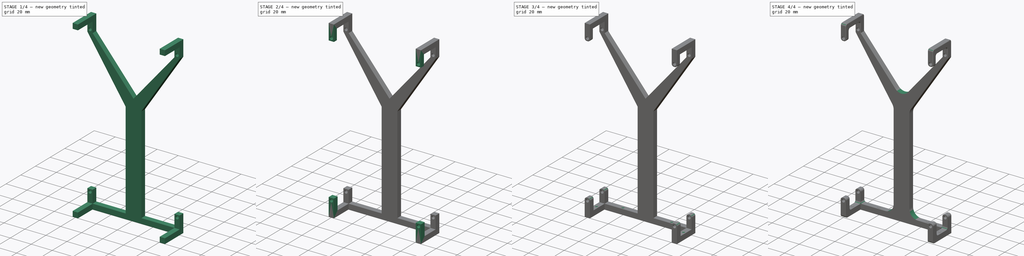
[diagram: build sequence overview — one tinted view per stage of 4, left to right]
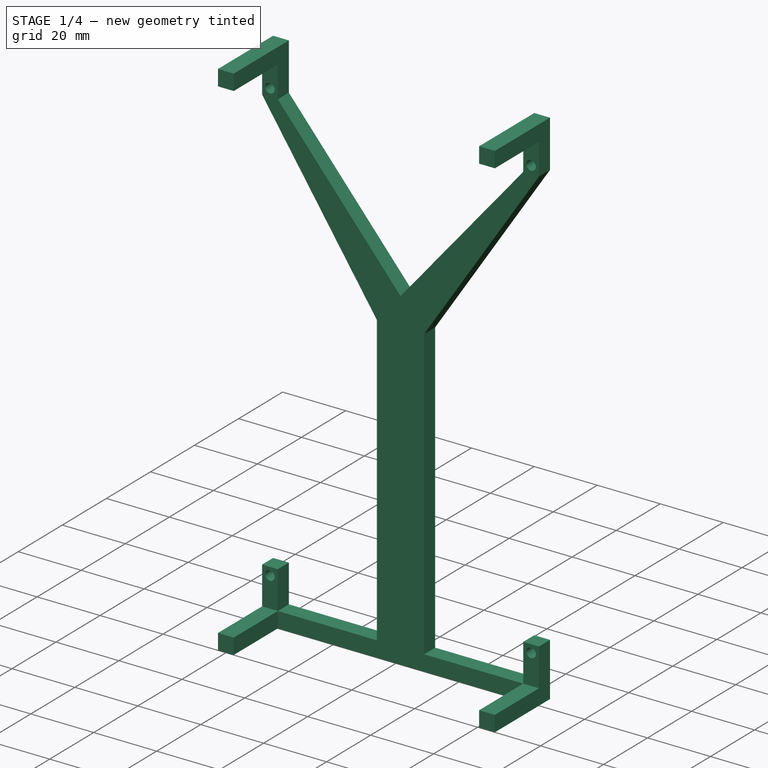
[diagram: stage 1 of 4 — iso view after this stage's code; geometry added in this stage tinted green]
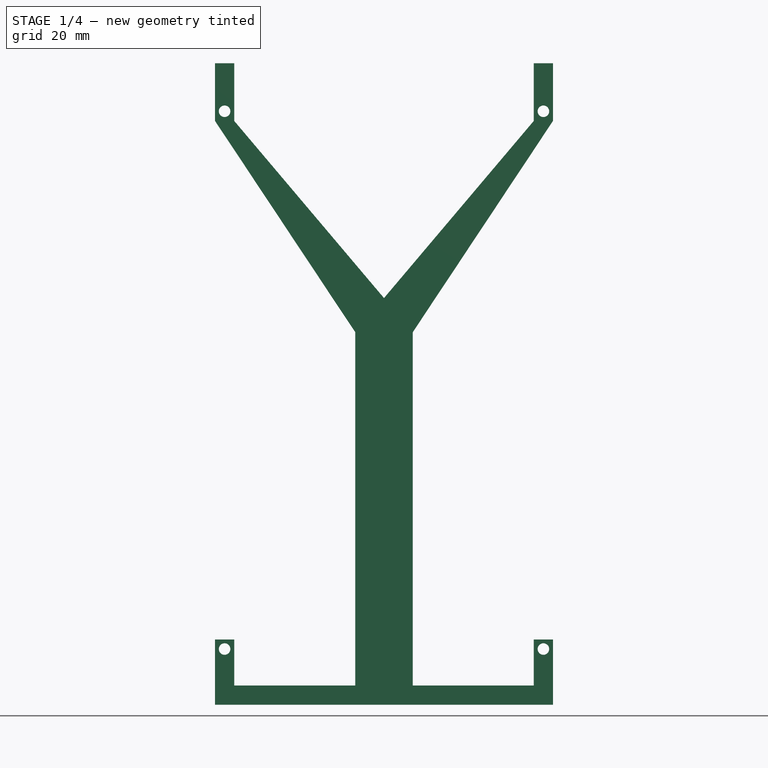
[diagram: stage 1 of 4 — front view after this stage's code; geometry added in this stage tinted green]
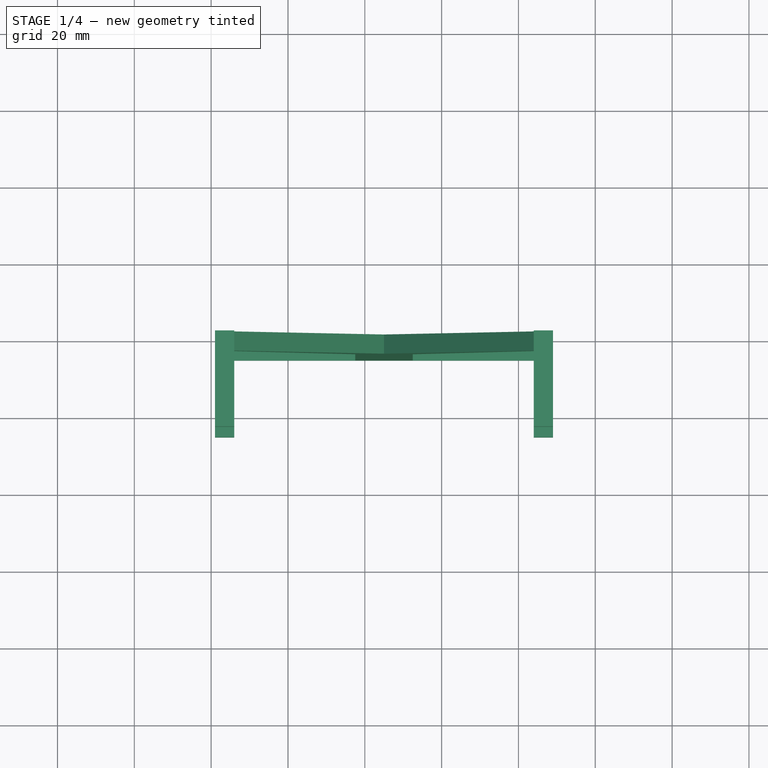
[diagram: stage 1 of 4 — top view after this stage's code; geometry added in this stage tinted green]
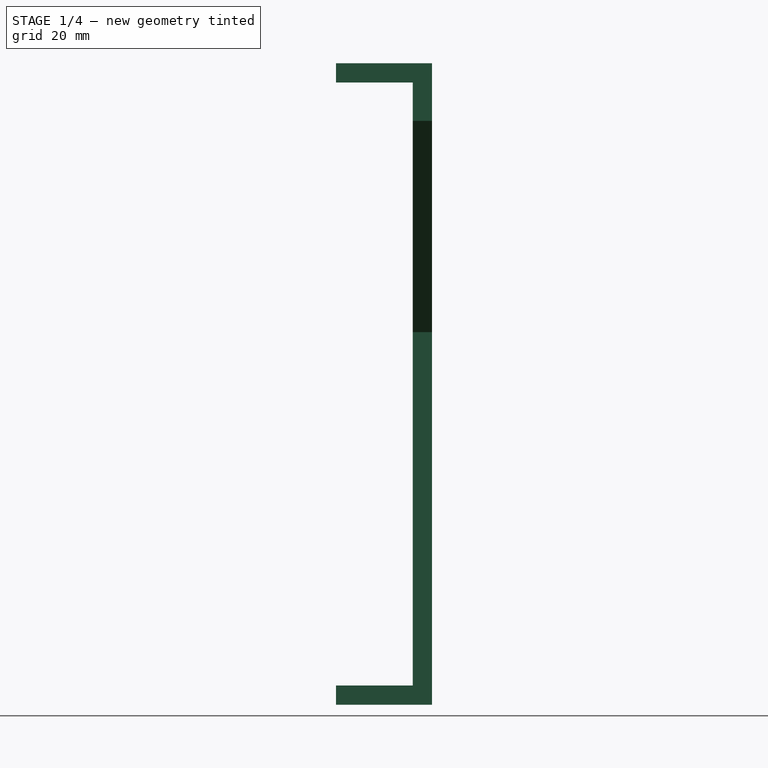
[diagram: stage 1 of 4 — right view after this stage's code; geometry added in this stage tinted green]
FCSTD DOCUMENT  (FreeCAD 1.0R39109 (Git))
Label: Stand
License: All rights reserved
LicenseURL: http://en.wikipedia.org/wiki/All_rights_reserved
objects: Sketcher::SketchObject×7, PartDesign::Pad×5, PartDesign::Fillet×4, PartDesign::Body×2, PartDesign::ShapeBinder×1, PartDesign::Pocket×1, PartDesign::Hole×1
note: 50 computed .brp shape members not serialized (recipe doc carries the construction recipe); baked Part::Feature solids carry a one-line shape summary decoded from their .brp

FEATURE [Sketcher::SketchObject] Sketch
  ArcFitTolerance = 1e-06
  AttachmentSupport = -> [XZ_Plane]
  FullyConstrained = true
  MakeInternals = false
  MapMode = 5
  Placement = pos=(0,0,0) rot=(1,0,0;1.5708rad)
  sketch-geometry (16):
    g0: LineSegment StartX=0 StartY=0 StartZ=0 EndX=90 EndY=0 EndZ=0
    g1: LineSegment StartX=90 StartY=0 StartZ=0 EndX=90 EndY=150 EndZ=0
    g2: LineSegment StartX=90 StartY=150 StartZ=0 EndX=0 EndY=150 EndZ=0
    g3: LineSegment StartX=0 StartY=150 StartZ=0 EndX=0 EndY=0 EndZ=0
    g4: LineSegment [constr] StartX=3.5 StartY=145 StartZ=0 EndX=3.5 EndY=5 EndZ=0
    g5: LineSegment [constr] StartX=3.5 StartY=5 StartZ=0 EndX=86.5 EndY=5 EndZ=0
    g6: LineSegment [constr] StartX=86.5 StartY=5 StartZ=0 EndX=86.5 EndY=145 EndZ=0
    g7: LineSegment [constr] StartX=86.5 StartY=145 StartZ=0 EndX=3.5 EndY=145 EndZ=0
    g8: LineSegment [constr] StartX=86.5 StartY=145 StartZ=0 EndX=86.5 EndY=150 EndZ=0
    g9: LineSegment [constr] StartX=86.5 StartY=5 StartZ=0 EndX=86.5 EndY=0 EndZ=0
    g10: LineSegment [constr] StartX=3.5 StartY=145 StartZ=0 EndX=0 EndY=145 EndZ=0
    g11: LineSegment [constr] StartX=86.5 StartY=145 StartZ=0 EndX=90 EndY=145 EndZ=0
    g12: Circle CenterX=3.5 CenterY=145 CenterZ=0 NormalX=0 NormalY=0 NormalZ=1 AngleXU=0 Radius=1.5
    g13: Circle CenterX=86.5 CenterY=145 CenterZ=0 NormalX=0 NormalY=0 NormalZ=1 AngleXU=0 Radius=1.5
    g14: Circle CenterX=86.5 CenterY=5 CenterZ=0 NormalX=0 NormalY=0 NormalZ=1 AngleXU=0 Radius=1.5
    g15: Circle CenterX=3.5 CenterY=5 CenterZ=0 NormalX=0 NormalY=0 NormalZ=1 AngleXU=0 Radius=1.5
  constraints (43):
    c: Coincident(g0,g1)
    c: Coincident(g1,g2)
    c: Coincident(g2,g3)
    c: Coincident(g3,g0)
    c: Horizontal(g0)
    c: Horizontal(g2)
    c: Vertical(g1)
    c: Vertical(g3)
    c: Coincident(g0,g-1)
    c: DistanceX(g2,g2) = 90
    c: DistanceY(g3,g3) = 150
    c: Coincident(g4,g5)
    c: Coincident(g5,g6)
    c: Coincident(g6,g7)
    c: Coincident(g7,g4)
    c: Vertical(g4)
    c: Vertical(g6)
    c: Horizontal(g5)
    c: Horizontal(g7)
    c: Distance(g2,g7) = 5
    c: Coincident(g8,g6)
    c: PointOnObject(g8,g2)
    c: Vertical(g8)
    c: Coincident(g9,g5)
    c: PointOnObject(g9,g0)
    c: Vertical(g9)
    c: Equal(g9,g8)
    c: Coincident(g10,g4)
    c: PointOnObject(g10,g3)
    c: Horizontal(g10)
    c: Coincident(g11,g6)
    c: PointOnObject(g11,g1)
    c: Horizontal(g11)
    c: Equal(g10,g11)
    c: Distance(g11,g11) = 3.5
    c: Coincident(g12,g4)
    c: Coincident(g13,g6)
    c: Coincident(g14,g5)
    c: Coincident(g15,g4)
    c: Diameter(g15) = 3
    c: Equal(g15,g14)
    c: Equal(g14,g13)
    c: Equal(g13,g12)
FEATURE [PartDesign::Pad] Pad
  Direction = (0,-1,2e-16)
  Length = 1
  Length2 = 10
  Placement = pos=(0,0,0) rot=(1,0,0;1.5708rad)
  Profile = -> Sketch
  ReferenceAxis = -> Sketch [N_Axis]
  Refine = true
  Suppressed = false
  Type = 0
FEATURE [PartDesign::Body] Body  label="Platine"
  AllowCompound = false
  Group = -> [Sketch,Pad]
  Origin = -> Origin
  Placement = pos=(0,-12,0) rot=(0,0,1;0rad)
  Tip = -> Pad
FEATURE [PartDesign::ShapeBinder] ShapeBinder
  Support = -> [Pad]
  TraceSupport = false
FEATURE [Sketcher::SketchObject] Sketch001
  ArcFitTolerance = 1e-06
  AttachmentSupport = -> [XZ_Plane001]
  ExternalGeometry = -> [ShapeBinder]
  FullyConstrained = false
  MakeInternals = false
  MapMode = 5
  Placement = pos=(0,0,0) rot=(1,0,0;1.5708rad)
  sketch-geometry (74):
    g0: LineSegment [constr] StartX=37.5 StartY=87.5035 StartZ=0 EndX=52.5 EndY=87.5035 EndZ=0
    g1: LineSegment [constr] StartX=86.5 StartY=5 StartZ=0 EndX=89 EndY=5 EndZ=0
    g2: LineSegment [constr] StartX=3.5 StartY=5 StartZ=0 EndX=1 EndY=5 EndZ=0
    g3: GeomPoint [constr] X=45 Y=5 Z=0
    g4: LineSegment [constr] StartX=37.5 StartY=87.5035 StartZ=0 EndX=1 EndY=142.5 EndZ=0
    g5: LineSegment [constr] StartX=1 StartY=142.5 StartZ=0 EndX=6 EndY=142.5 EndZ=0
    g6: LineSegment [constr] StartX=6 StartY=142.5 StartZ=0 EndX=52.5 EndY=87.5035 EndZ=0
    g7: LineSegment [constr] StartX=1 StartY=142.5 StartZ=0 EndX=6 EndY=142.5 EndZ=0
    g8: LineSegment [constr] StartX=6 StartY=142.5 StartZ=0 EndX=6 EndY=157.5 EndZ=0
    g9: LineSegment [constr] StartX=6 StartY=157.5 StartZ=0 EndX=1 EndY=157.5 EndZ=0
    g10: LineSegment [constr] StartX=1 StartY=157.5 StartZ=0 EndX=1 EndY=142.5 EndZ=0
    g11: LineSegment [constr] StartX=37.5 StartY=87.5035 StartZ=0 EndX=84 EndY=142.5 EndZ=0
    g12: LineSegment [constr] StartX=84 StartY=142.5 StartZ=0 EndX=89 EndY=142.5 EndZ=0
    g13: LineSegment [constr] StartX=89 StartY=142.5 StartZ=0 EndX=52.5 EndY=87.5035 EndZ=0
    g14: LineSegment [constr] StartX=84 StartY=142.5 StartZ=0 EndX=84 EndY=157.5 EndZ=0
    g15: LineSegment [constr] StartX=84 StartY=157.5 StartZ=0 EndX=89 EndY=157.5 EndZ=0
    g16: LineSegment [constr] StartX=89 StartY=157.5 StartZ=0 EndX=89 EndY=142.5 EndZ=0
    g17: LineSegment [constr] StartX=37.5 StartY=-4.5 StartZ=0 EndX=52.5 EndY=-4.5 EndZ=0
    g18: LineSegment StartX=37.5 StartY=-4.5 StartZ=0 EndX=37.5 EndY=87.5035 EndZ=0
    g19: LineSegment StartX=37.5 StartY=87.5035 StartZ=0 EndX=1 EndY=142.5 EndZ=0
    g20: LineSegment StartX=1 StartY=142.5 StartZ=0 EndX=1 EndY=157.5 EndZ=0
    g21: LineSegment StartX=1 StartY=157.5 StartZ=0 EndX=6 EndY=157.5 EndZ=0
    g22: LineSegment StartX=6 StartY=157.5 StartZ=0 EndX=6 EndY=142.5 EndZ=0
    g23: LineSegment StartX=6 StartY=142.5 StartZ=0 EndX=45 EndY=96.3739 EndZ=0
    g24: LineSegment StartX=45 StartY=96.3739 StartZ=0 EndX=84 EndY=142.5 EndZ=0
    g25: LineSegment StartX=84 StartY=142.5 StartZ=0 EndX=84 EndY=157.5 EndZ=0
    g26: LineSegment StartX=84 StartY=157.5 StartZ=0 EndX=89 EndY=157.5 EndZ=0
    g27: LineSegment [constr] StartX=6 StartY=157.5 StartZ=0 EndX=84 EndY=157.5 EndZ=0
    g28: LineSegment [constr] StartX=84 StartY=142.5 StartZ=0 EndX=6 EndY=142.5 EndZ=0
    g29: LineSegment StartX=89 StartY=157.5 StartZ=0 EndX=89 EndY=142.5 EndZ=0
    g30: LineSegment StartX=89 StartY=142.5 StartZ=0 EndX=52.5 EndY=87.5035 EndZ=0
    g31: LineSegment StartX=52.5 StartY=87.5035 StartZ=0 EndX=52.5 EndY=-4.5 EndZ=0
    g32: LineSegment [constr] StartX=37.5 StartY=14.5 StartZ=0 EndX=52.5 EndY=14.5 EndZ=0
    g33: LineSegment [constr] StartX=37.5 StartY=-4.5 StartZ=0 EndX=52.5 EndY=14.5 EndZ=0
    g34: LineSegment [constr] StartX=37.5 StartY=14.5 StartZ=0 EndX=52.5 EndY=-4.5 EndZ=0
    g35: LineSegment [constr] StartX=1 StartY=5 StartZ=0 EndX=1 EndY=-9.5 EndZ=0
    g36: LineSegment [constr] StartX=89 StartY=5 StartZ=0 EndX=89 EndY=-9.5 EndZ=0
    g37: LineSegment [constr] StartX=89 StartY=-9.5 StartZ=0 EndX=1 EndY=-9.5 EndZ=0
    g38: LineSegment StartX=1 StartY=-4.5 StartZ=0 EndX=1 EndY=-9.5 EndZ=0
    g39: LineSegment StartX=1 StartY=-9.5 StartZ=0 EndX=89 EndY=-9.5 EndZ=0
    g40: LineSegment StartX=89 StartY=-9.5 StartZ=0 EndX=89 EndY=-4.5 EndZ=0
    g41: LineSegment [constr] StartX=89 StartY=142.5 StartZ=0 EndX=89 EndY=5 EndZ=0
    g42: LineSegment [constr] StartX=1 StartY=-4.5 StartZ=0 EndX=1 EndY=142.5 EndZ=0
    g43: Circle CenterX=86.5 CenterY=145 CenterZ=0 NormalX=0 NormalY=0 NormalZ=1 AngleXU=0 Radius=1.5
    g44: Circle CenterX=3.5 CenterY=145 CenterZ=0 NormalX=0 NormalY=0 NormalZ=1 AngleXU=0 Radius=1.5
    g45: LineSegment [constr] StartX=89 StartY=-4.5 StartZ=0 EndX=52.5 EndY=-4.5 EndZ=0
    g46: LineSegment [constr] StartX=37.5 StartY=-4.5 StartZ=0 EndX=1 EndY=-4.5 EndZ=0
    g47: LineSegment [constr] StartX=89 StartY=-4.5 StartZ=0 EndX=89 EndY=7.5 EndZ=0
    g48: LineSegment [constr] StartX=89 StartY=7.5 StartZ=0 EndX=84 EndY=7.5 EndZ=0
    g49: LineSegment [constr] StartX=84 StartY=7.5 StartZ=0 EndX=84 EndY=-4.5 EndZ=0
    g50: LineSegment [constr] StartX=84 StartY=-4.5 StartZ=0 EndX=89 EndY=-4.5 EndZ=0
    g51: LineSegment [constr] StartX=1 StartY=-4.5 StartZ=0 EndX=6 EndY=-4.5 EndZ=0
    g52: LineSegment [constr] StartX=6 StartY=-4.5 StartZ=0 EndX=6 EndY=7.5 EndZ=0
    g53: LineSegment [constr] StartX=6 StartY=7.5 StartZ=0 EndX=1 EndY=7.5 EndZ=0
    g54: LineSegment [constr] StartX=1 StartY=7.5 StartZ=0 EndX=1 EndY=-4.5 EndZ=0
    g55: LineSegment [constr] StartX=84 StartY=142.5 StartZ=0 EndX=84 EndY=7.5 EndZ=0
    g56: LineSegment [constr] StartX=6 StartY=7.5 StartZ=0 EndX=6 EndY=142.5 EndZ=0
    g57: LineSegment [constr] StartX=6 StartY=7.5 StartZ=0 EndX=84 EndY=7.5 EndZ=0
    g58: LineSegment StartX=89 StartY=-4.5 StartZ=0 EndX=89 EndY=7.5 EndZ=0
    g59: LineSegment StartX=89 StartY=7.5 StartZ=0 EndX=84 EndY=7.5 EndZ=0
    g60: LineSegment StartX=84 StartY=-4.5 StartZ=0 EndX=52.5 EndY=-4.5 EndZ=0
    g61: LineSegment StartX=37.5 StartY=-4.5 StartZ=0 EndX=6 EndY=-4.5 EndZ=0
    g62: LineSegment StartX=6 StartY=-4.5 StartZ=0 EndX=6 EndY=7.5 EndZ=0
    g63: LineSegment StartX=6 StartY=7.5 StartZ=0 EndX=1 EndY=7.5 EndZ=0
    g64: LineSegment StartX=1 StartY=7.5 StartZ=0 EndX=1 EndY=-4.5 EndZ=0
    g65: Circle CenterX=3.5 CenterY=5 CenterZ=0 NormalX=0 NormalY=0 NormalZ=1 AngleXU=0 Radius=1.5
    g66: LineSegment StartX=84 StartY=-4.5 StartZ=0 EndX=84 EndY=7.5 EndZ=0
    g67: GeomPoint [constr] X=89 Y=2.5 Z=0
    g68: LineSegment [constr] StartX=89 StartY=2.5 StartZ=0 EndX=84 EndY=7.5 EndZ=0
    g69: Circle CenterX=86.5 CenterY=5 CenterZ=0 NormalX=0 NormalY=0 NormalZ=1 AngleXU=0 Radius=1.5
    g70: GeomPoint [constr] X=84 Y=147.5 Z=0
    g71: LineSegment [constr] StartX=84 StartY=147.5 StartZ=0 EndX=89 EndY=142.5 EndZ=0
    g72: GeomPoint [constr] X=6 Y=147.5 Z=0
    g73: LineSegment [constr] StartX=1 StartY=142.5 StartZ=0 EndX=6 EndY=147.5 EndZ=0
  constraints (171):
    c: Horizontal(g0)
    c: Coincident(g1,g-3)
    c: Horizontal(g1)
    c: Coincident(g2,g-4)
    c: Horizontal(g2)
    c: Equal(g2,g1)
    c: Symmetric(g2,g1,g3)
    c: Coincident(g5,g4)
    c: Horizontal(g5)
    c: Coincident(g6,g5)
    c: Coincident(g6,g0)
    c: Coincident(g7,g8)
    c: Coincident(g8,g9)
    c: Coincident(g9,g10)
    c: Coincident(g10,g7)
    c: Horizontal(g9)
    c: Vertical(g8)
    c: Vertical(g10)
    c: Coincident(g7,g4)
    c: Coincident(g7,g5)
    c: Distance(g9,g9) = 5
    c: Coincident(g12,g11)
    c: Horizontal(g12)
    c: Coincident(g13,g12)
    c: Coincident(g13,g0)
    c: Coincident(g14,g11)
    c: Coincident(g15,g14)
    c: Horizontal(g15)
    c: Coincident(g16,g12)
    c: Vertical(g16)
    c: Vertical(g14)
    c: Distance(g0,g0) = 15
    c: Horizontal(g17)
    c: Coincident(g19,g4)
    c: Coincident(g20,g4)
    c: Coincident(g20,g9)
    c: Coincident(g21,g9)
    c: Coincident(g21,g8)
    c: Coincident(g22,g8)
    c: Coincident(g22,g5)
    c: Coincident(g23,g5)
    c: PointOnObject(g23,g6)
    c: PointOnObject(g23,g11)
    c: Coincident(g24,g23)
    c: Coincident(g24,g11)
    c: Coincident(g25,g11)
    c: Coincident(g25,g14)
    c: Coincident(g26,g14)
    c: Coincident(g26,g16)
    c: Horizontal(g26)
    c: PointOnObject(g15,g16)
    c: Coincident(g27,g8)
    c: Coincident(g27,g14)
    c: Horizontal(g27)
    c: Coincident(g28,g11)
    c: Coincident(g28,g5)
    c: Coincident(g29,g15)
    c: Coincident(g29,g12)
    c: Coincident(g30,g12)
    c: Coincident(g30,g0)
    c: Coincident(g31,g0)
    c: PointOnObject(g32,g18)
    c: PointOnObject(g32,g31)
    c: Horizontal(g32)
    c: Coincident(g33,g32)
    c: Coincident(g34,g32)
    c: PointOnObject(g3,g34)
    c: Coincident(g35,g2)
    c: Vertical(g35)
    c: Coincident(g36,g1)
    c: Vertical(g36)
    c: Coincident(g37,g36)
    c: Coincident(g37,g35)
    c: Horizontal(g37)
    c: Distance(g40,g36) = 5
    c: Coincident(g38,g35)
    c: Coincident(g39,g38)
    c: Coincident(g39,g36)
    c: Coincident(g40,g36)
    c: Vertical(g40)
    c: PointOnObject(g38,g35)
    c: Coincident(g41,g12)
    c: Coincident(g41,g1)
    c: Vertical(g41)
    c: Equal(g26,g21)
    c: Coincident(g42,g4)
    c: Coincident(g11,g4)
    c: Coincident(g11,g18)
    c: Coincident(g11,g19)
    c: Coincident(g0,g4)
    c: Vertical(g18)
    c: Vertical(g31)
    c: PointOnObject(g3,g33)
    c: Coincident(g44,g-6)
    c: Equal(g44,g43)
    c: Diameter(g44) = 3
    c: Coincident(g17,g31)
    c: Coincident(g17,g18)
    c: Coincident(g33,g17)
    c: Coincident(g34,g17)
    c: Coincident(g45,g40)
    c: Coincident(g45,g17)
    c: Horizontal(g45)
    c: Coincident(g46,g17)
    c: Coincident(g46,g38)
    c: Horizontal(g46)
    c: Coincident(g47,g48)
    c: Coincident(g48,g49)
    c: Coincident(g49,g50)
    c: Coincident(g50,g47)
    c: Vertical(g47)
    c: Vertical(g49)
    c: Horizontal(g48)
    c: Horizontal(g50)
    c: Coincident(g47,g40)
    c: Coincident(g51,g52)
    c: Coincident(g52,g53)
    c: Coincident(g53,g54)
    c: Coincident(g54,g51)
    c: Horizontal(g51)
    c: Horizontal(g53)
    c: Vertical(g52)
    c: Vertical(g54)
    c: Coincident(g51,g42)
    c: Coincident(g55,g11)
    c: Coincident(g55,g48)
    c: Vertical(g55)
    c: Coincident(g56,g52)
    c: Coincident(g56,g5)
    c: Vertical(g56)
    c: Coincident(g57,g52)
    c: Coincident(g57,g48)
    c: Horizontal(g57)
    c: PointOnObject(g51,g46)
    c: Coincident(g58,g40)
    c: Coincident(g58,g47)
    c: Coincident(g59,g47)
    c: Coincident(g59,g48)
    c: Coincident(g60,g49)
    c: Coincident(g60,g17)
    c: Coincident(g61,g17)
    c: Coincident(g61,g51)
    c: Coincident(g62,g51)
    c: Coincident(g62,g52)
    c: Coincident(g63,g52)
    c: Coincident(g63,g53)
    c: Coincident(g64,g53)
    c: Coincident(g64,g38)
    c: Vertical(g64)
    c: Coincident(g65,g2)
    c: Coincident(g66,g49)
    c: Coincident(g66,g48)
    c: PointOnObject(g67,g58)
    c: DistanceY(g67,g47) = 5
    c: Coincident(g68,g67)
    c: Coincident(g68,g48)
    c: PointOnObject(g1,g68)
    c: Distance(g67,g40) = 7
    c: Coincident(g69,g1)
    c: PointOnObject(g70,g25)
    c: Coincident(g71,g70)
    c: Coincident(g71,g12)
    c: Coincident(g-5,g43)
    c: Distance(g70,g11) = 5
    c: Symmetric(g12,g70,g43)
    c: Distance(g70,g14) = 10
    c: Horizontal(g28)
    c: PointOnObject(g72,g22)
    c: Coincident(g73,g4)
    c: Coincident(g73,g72)
    c: Symmetric(g4,g72,g44)
FEATURE [PartDesign::Pad] Pad001
  Direction = (0,-1,2e-16)
  Length = 5
  Length2 = 10
  Placement = pos=(0,0,0) rot=(1,0,0;1.5708rad)
  Profile = -> Sketch001
  ReferenceAxis = -> Sketch001 [N_Axis]
  Refine = true
  Suppressed = false
  Type = 0
FEATURE [Sketcher::SketchObject] Sketch002
  ArcFitTolerance = 1e-06
  AttachmentSupport = -> [Pad001]
  ExternalGeometry = -> [Pad001]
  FullyConstrained = true
  MakeInternals = false
  MapMode = 5
  Placement = pos=(0,-5,0) rot=(1,0,0;1.5708rad)
  sketch-geometry (17):
    g0: LineSegment StartX=1 StartY=-9.5 StartZ=0 EndX=6 EndY=-9.5 EndZ=0
    g1: LineSegment StartX=6 StartY=-9.5 StartZ=0 EndX=6 EndY=-4.5 EndZ=0
    g2: LineSegment StartX=6 StartY=-4.5 StartZ=0 EndX=1 EndY=-4.5 EndZ=0
    g3: LineSegment StartX=1 StartY=-4.5 StartZ=0 EndX=1 EndY=-9.5 EndZ=0
    g4: LineSegment StartX=89 StartY=-9.5 StartZ=0 EndX=89 EndY=-4.5 EndZ=0
    g5: LineSegment StartX=89 StartY=-4.5 StartZ=0 EndX=84 EndY=-4.5 EndZ=0
    g6: LineSegment StartX=84 StartY=-4.5 StartZ=0 EndX=84 EndY=-9.5 EndZ=0
    g7: LineSegment StartX=84 StartY=-9.5 StartZ=0 EndX=89 EndY=-9.5 EndZ=0
    g8: LineSegment StartX=84 StartY=157.5 StartZ=0 EndX=84 EndY=152.5 EndZ=0
    g9: LineSegment StartX=84 StartY=152.5 StartZ=0 EndX=89 EndY=152.5 EndZ=0
    g10: LineSegment StartX=89 StartY=152.5 StartZ=0 EndX=89 EndY=157.5 EndZ=0
    g11: LineSegment StartX=89 StartY=157.5 StartZ=0 EndX=84 EndY=157.5 EndZ=0
    g12: LineSegment StartX=6 StartY=157.5 StartZ=0 EndX=1 EndY=157.5 EndZ=0
    g13: LineSegment StartX=1 StartY=157.5 StartZ=0 EndX=1 EndY=152.5 EndZ=0
    g14: LineSegment StartX=1 StartY=152.5 StartZ=0 EndX=6 EndY=152.5 EndZ=0
    g15: LineSegment StartX=6 StartY=152.5 StartZ=0 EndX=6 EndY=157.5 EndZ=0
    g16: LineSegment [constr] StartX=6 StartY=152.5 StartZ=0 EndX=84 EndY=152.5 EndZ=0
  constraints (44):
    c: Coincident(g0,g1)
    c: Coincident(g1,g2)
    c: Coincident(g2,g3)
    c: Coincident(g3,g0)
    c: Horizontal(g0)
    c: Horizontal(g2)
    c: Vertical(g1)
    c: Vertical(g3)
    c: Coincident(g0,g-10)
    c: Coincident(g1,g-9)
    c: Coincident(g4,g5)
    c: Coincident(g5,g6)
    c: Coincident(g6,g7)
    c: Coincident(g7,g4)
    c: Vertical(g4)
    c: Vertical(g6)
    c: Horizontal(g5)
    c: Horizontal(g7)
    c: Coincident(g4,g-7)
    c: Coincident(g5,g-8)
    c: Coincident(g8,g9)
    c: Coincident(g9,g10)
    c: Coincident(g10,g11)
    c: Coincident(g11,g8)
    c: Vertical(g8)
    c: Vertical(g10)
    c: Horizontal(g9)
    c: Horizontal(g11)
    c: Coincident(g8,g-6)
    c: PointOnObject(g9,g-3)
    c: Coincident(g12,g13)
    c: Coincident(g13,g14)
    c: Coincident(g14,g15)
    c: Coincident(g15,g12)
    c: Horizontal(g12)
    c: Horizontal(g14)
    c: Vertical(g13)
    c: Coincident(g12,g-5)
    c: PointOnObject(g13,g-4)
    c: Coincident(g16,g14)
    c: Coincident(g16,g8)
    c: Horizontal(g16)
    c: Vertical(g15)
    c: Distance(g10,g10) = 5
FEATURE [PartDesign::Pad] Pad002
  BaseFeature = -> Pad001
  Direction = (0,-1,2e-16)
  Length = 20
  Length2 = 10
  Placement = pos=(0,0,0) rot=(1,0,0;1.5708rad)
  Profile = -> Sketch002
  ReferenceAxis = -> Sketch002 [N_Axis]
  Refine = true
  Suppressed = false
  Type = 0
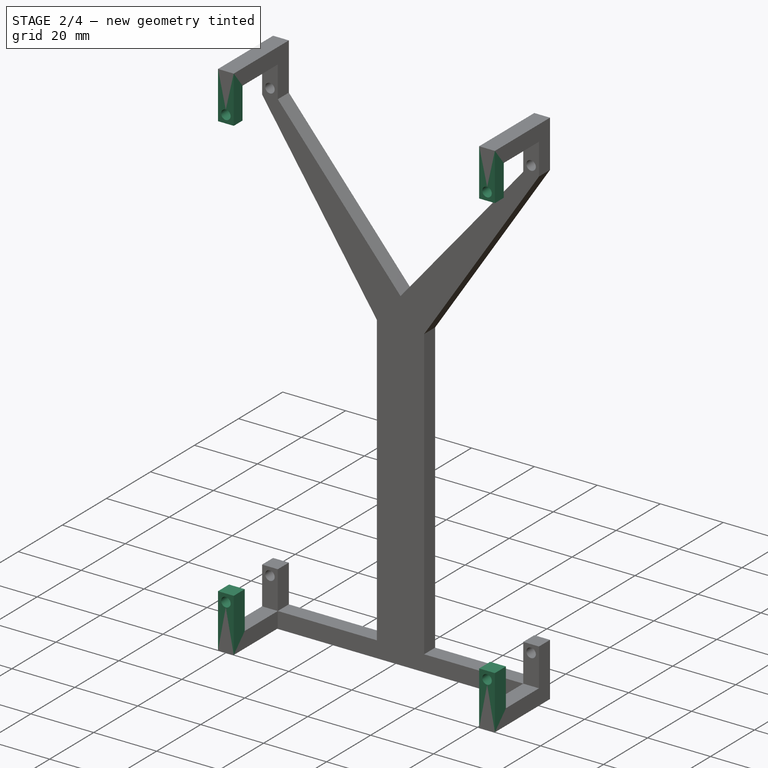
[diagram: stage 2 of 4 — iso view after this stage's code; geometry added in this stage tinted green]
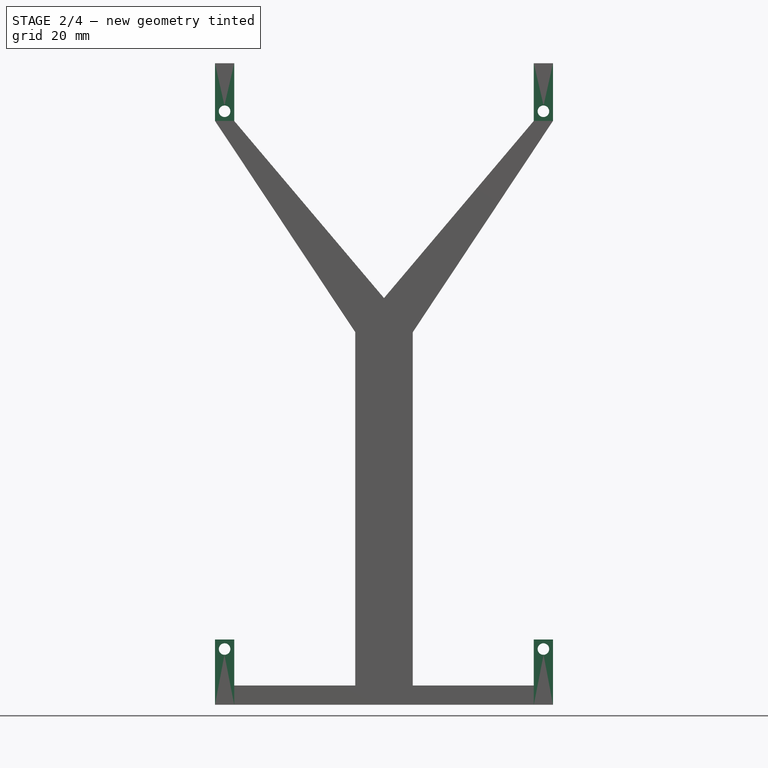
[diagram: stage 2 of 4 — front view after this stage's code; geometry added in this stage tinted green]
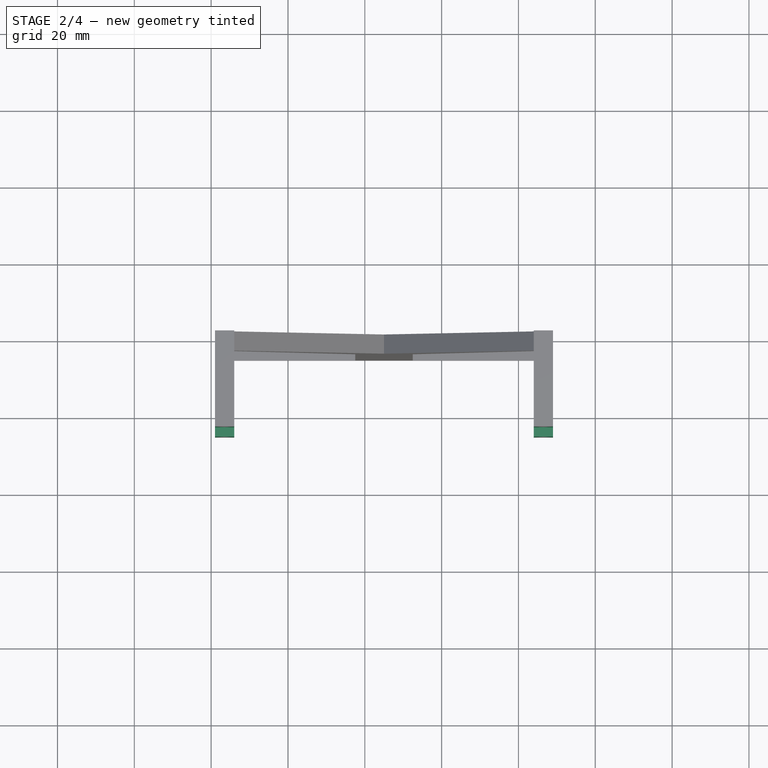
[diagram: stage 2 of 4 — top view after this stage's code; geometry added in this stage tinted green]
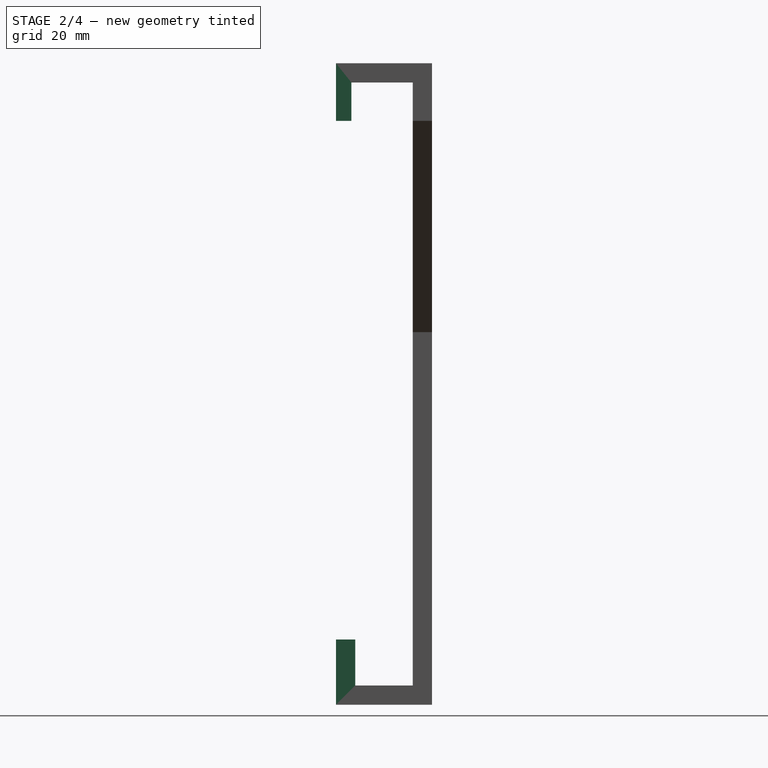
[diagram: stage 2 of 4 — right view after this stage's code; geometry added in this stage tinted green]
FEATURE [Sketcher::SketchObject] Sketch003
  ArcFitTolerance = 1e-06
  AttachmentSupport = -> [Pad002]
  ExternalGeometry = -> [Pad002]
  FullyConstrained = true
  MakeInternals = false
  MapMode = 5
  Placement = pos=(0,3.39e-14,152.5) rot=(1,0,0;3.14159rad)
  sketch-geometry (9):
    g0: LineSegment StartX=1 StartY=25 StartZ=0 EndX=1 EndY=21 EndZ=0
    g1: LineSegment StartX=1 StartY=21 StartZ=0 EndX=6 EndY=21 EndZ=0
    g2: LineSegment StartX=6 StartY=21 StartZ=0 EndX=6 EndY=25 EndZ=0
    g3: LineSegment StartX=6 StartY=25 StartZ=0 EndX=1 EndY=25 EndZ=0
    g4: LineSegment StartX=89 StartY=25 StartZ=0 EndX=84 EndY=25 EndZ=0
    g5: LineSegment StartX=84 StartY=25 StartZ=0 EndX=84 EndY=21 EndZ=0
    g6: LineSegment StartX=84 StartY=21 StartZ=0 EndX=89 EndY=21 EndZ=0
    g7: LineSegment StartX=89 StartY=21 StartZ=0 EndX=89 EndY=25 EndZ=0
    g8: LineSegment [constr] StartX=6 StartY=21 StartZ=0 EndX=84 EndY=21 EndZ=0
  constraints (24):
    c: Coincident(g0,g1)
    c: Coincident(g1,g2)
    c: Coincident(g2,g3)
    c: Coincident(g3,g0)
    c: Vertical(g0)
    c: Vertical(g2)
    c: Horizontal(g1)
    c: Horizontal(g3)
    c: Coincident(g0,g-6)
    c: PointOnObject(g1,g-5)
    c: Coincident(g4,g5)
    c: Coincident(g5,g6)
    c: Coincident(g6,g7)
    c: Coincident(g7,g4)
    c: Horizontal(g4)
    c: Horizontal(g6)
    c: Vertical(g5)
    c: Vertical(g7)
    c: Coincident(g4,g-3)
    c: PointOnObject(g5,g-4)
    c: Coincident(g8,g1)
    c: Coincident(g8,g5)
    c: Horizontal(g8)
    c: Distance(g7,g7) = 4
FEATURE [PartDesign::Pad] Pad003
  BaseFeature = -> Pad002
  Direction = (0,0,-1)
  Length = 10
  Length2 = 10
  Placement = pos=(0,0,0) rot=(1,0,0;1.5708rad)
  Profile = -> Sketch003
  ReferenceAxis = -> Sketch003 [N_Axis]
  Refine = true
  Suppressed = false
  Type = 0
FEATURE [Sketcher::SketchObject] Sketch004
  ArcFitTolerance = 1e-06
  AttachmentSupport = -> [Pad003]
  ExternalGeometry = -> [Pad003]
  FullyConstrained = true
  MakeInternals = false
  MapMode = 5
  Placement = pos=(0,-1e-15,-4.5) rot=(0,0,1;3.14159rad)
  sketch-geometry (9):
    g0: LineSegment StartX=-89 StartY=25 StartZ=0 EndX=-89 EndY=20 EndZ=0
    g1: LineSegment StartX=-89 StartY=20 StartZ=0 EndX=-84 EndY=20 EndZ=0
    g2: LineSegment StartX=-84 StartY=20 StartZ=0 EndX=-84 EndY=25 EndZ=0
    g3: LineSegment StartX=-84 StartY=25 StartZ=0 EndX=-89 EndY=25 EndZ=0
    g4: LineSegment StartX=-1 StartY=25 StartZ=0 EndX=-6 EndY=25 EndZ=0
    g5: LineSegment StartX=-6 StartY=25 StartZ=0 EndX=-6 EndY=20 EndZ=0
    g6: LineSegment StartX=-6 StartY=20 StartZ=0 EndX=-1 EndY=20 EndZ=0
    g7: LineSegment StartX=-1 StartY=20 StartZ=0 EndX=-1 EndY=25 EndZ=0
    g8: LineSegment [constr] StartX=-84 StartY=20 StartZ=0 EndX=-6 EndY=20 EndZ=0
  constraints (24):
    c: Coincident(g0,g1)
    c: Coincident(g1,g2)
    c: Coincident(g2,g3)
    c: Coincident(g3,g0)
    c: Vertical(g0)
    c: Vertical(g2)
    c: Horizontal(g1)
    c: Horizontal(g3)
    c: Coincident(g0,g-6)
    c: PointOnObject(g1,g-5)
    c: Coincident(g4,g5)
    c: Coincident(g5,g6)
    c: Coincident(g6,g7)
    c: Coincident(g7,g4)
    c: Horizontal(g4)
    c: Horizontal(g6)
    c: Vertical(g5)
    c: Vertical(g7)
    c: Coincident(g4,g-3)
    c: Coincident(g8,g1)
    c: Coincident(g8,g5)
    c: Horizontal(g8)
    c: Distance(g7,g7) = 5
    c: PointOnObject(g4,g-4)
FEATURE [PartDesign::Pad] Pad004
  BaseFeature = -> Pad003
  Direction = (0,0,1)
  Length = 12
  Length2 = 10
  Placement = pos=(0,0,0) rot=(1,0,0;1.5708rad)
  Profile = -> Sketch004
  ReferenceAxis = -> Sketch004 [N_Axis]
  Refine = true
  Suppressed = false
  Type = 0
FEATURE [Sketcher::SketchObject] Sketch005
  ArcFitTolerance = 1e-06
  AttachmentSupport = -> [Pad004]
  ExternalGeometry = -> [Pad004]
  FullyConstrained = true
  MakeInternals = false
  MapMode = 5
  Placement = pos=(0,1.44e-14,0) rot=(-1,0,0;1.5708rad)
  sketch-geometry (4):
    g0: Circle CenterX=3.5 CenterY=-145 CenterZ=0 NormalX=0 NormalY=0 NormalZ=1 AngleXU=0 Radius=1.5
    g1: Circle CenterX=86.5 CenterY=-145 CenterZ=0 NormalX=0 NormalY=0 NormalZ=1 AngleXU=0 Radius=1.5
    g2: Circle CenterX=86.5 CenterY=-5 CenterZ=0 NormalX=0 NormalY=0 NormalZ=1 AngleXU=0 Radius=1.5
    g3: Circle CenterX=3.5 CenterY=-5 CenterZ=0 NormalX=0 NormalY=0 NormalZ=1 AngleXU=0 Radius=1.5
  constraints (8):
    c: Coincident(g0,g-6)
    c: Equal(g0,g-6)
    c: Coincident(g1,g-5)
    c: Equal(g1,g-5)
    c: Coincident(g2,g-4)
    c: Equal(g2,g-4)
    c: Coincident(g3,g-3)
    c: Equal(g3,g-3)
FEATURE [PartDesign::Pocket] Pocket
  BaseFeature = -> Pad004
  Direction = (0,-1,-2e-16)
  Length = 5
  Length2 = 5
  Placement = pos=(0,0,0) rot=(1,0,0;1.5708rad)
  Profile = -> Sketch005
  ReferenceAxis = -> Sketch005 [N_Axis]
  Refine = true
  Suppressed = false
  Type = 1
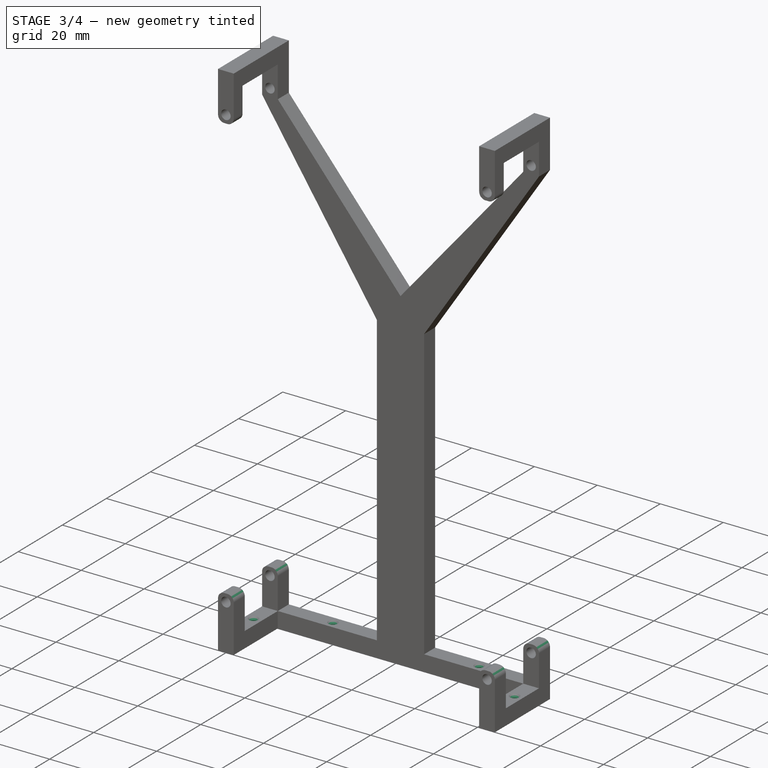
[diagram: stage 3 of 4 — iso view after this stage's code; geometry added in this stage tinted green]
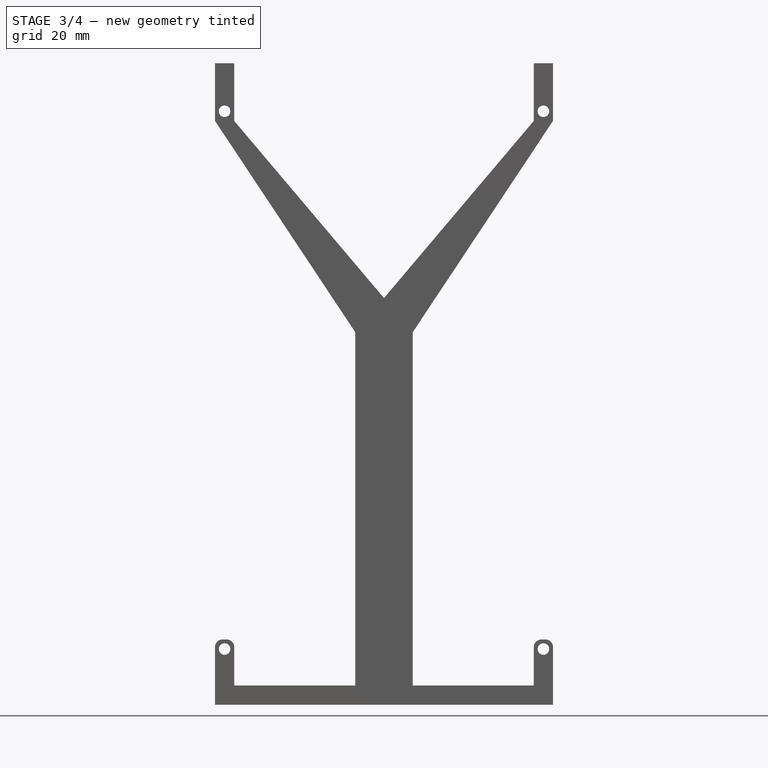
[diagram: stage 3 of 4 — front view after this stage's code; geometry added in this stage tinted green]
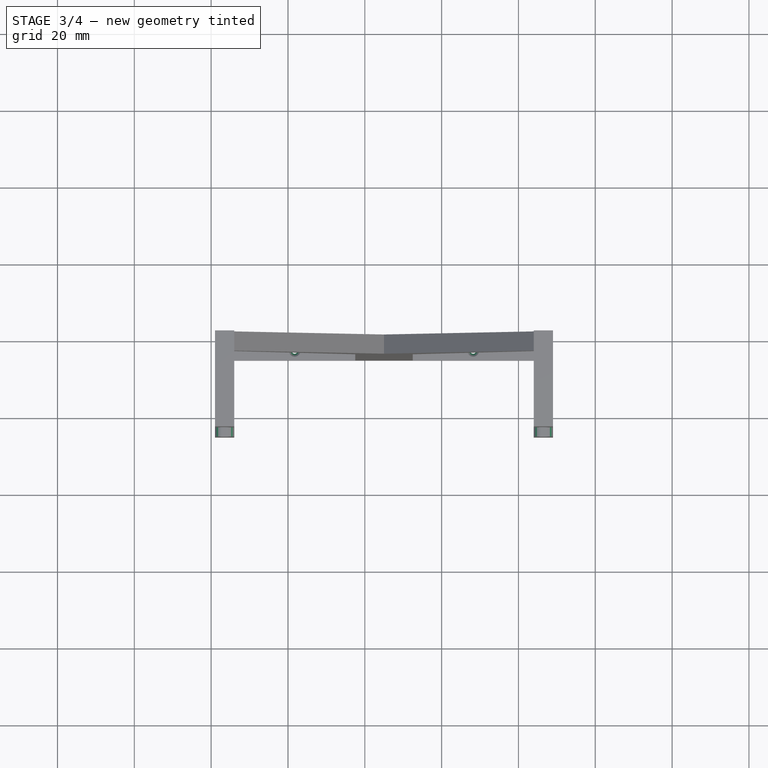
[diagram: stage 3 of 4 — top view after this stage's code; geometry added in this stage tinted green]
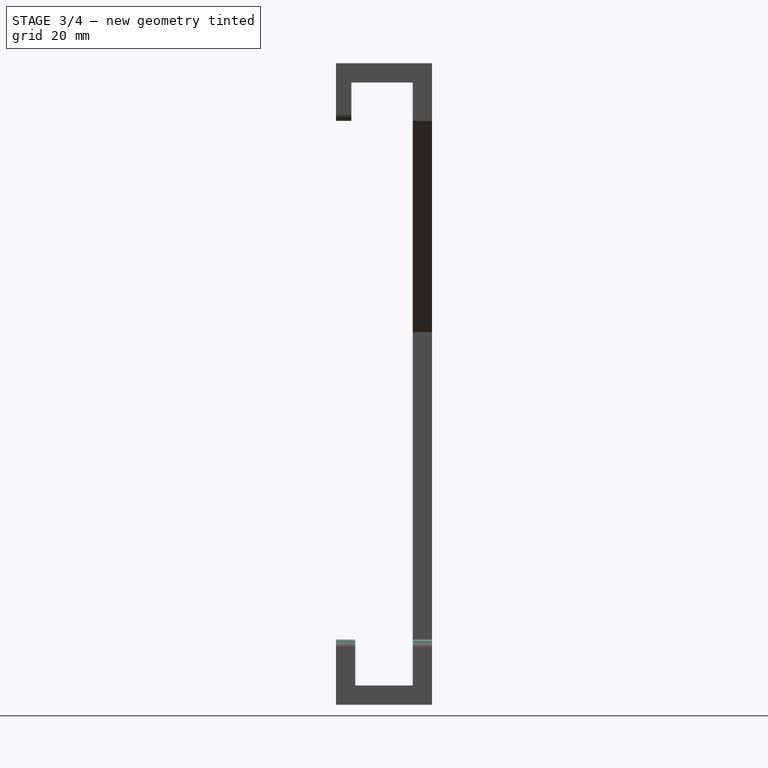
[diagram: stage 3 of 4 — right view after this stage's code; geometry added in this stage tinted green]
FEATURE [Sketcher::SketchObject] Sketch006
  ArcFitTolerance = 1e-06
  AttachmentSupport = -> [Pocket]
  ExternalGeometry = -> [Pocket]
  FullyConstrained = false
  MakeInternals = false
  MapMode = 5
  Placement = pos=(0,-1e-15,-4.5) rot=(0,0,1;3.14159rad)
  sketch-geometry (12):
    g0: LineSegment [constr] StartX=-6 StartY=5 StartZ=0 EndX=-1 EndY=19.7353 EndZ=0
    g1: LineSegment [constr] StartX=-6 StartY=20 StartZ=0 EndX=-1 EndY=5 EndZ=0
    g2: LineSegment [constr] StartX=-89 StartY=5 StartZ=0 EndX=-84 EndY=20 EndZ=0
    g3: LineSegment [constr] StartX=-89 StartY=20 StartZ=0 EndX=-84 EndY=5 EndZ=0
    g4: Circle CenterX=-86.5 CenterY=12.5 CenterZ=0 NormalX=0 NormalY=0 NormalZ=1 AngleXU=0 Radius=1.21721
    g5: Circle CenterX=-3.47775 CenterY=12.4332 CenterZ=0 NormalX=0 NormalY=0 NormalZ=1 AngleXU=0 Radius=0.727938
    g6: LineSegment [constr] StartX=-37.5 StartY=5 StartZ=0 EndX=-6 EndY=0 EndZ=0
    g7: LineSegment [constr] StartX=-6 StartY=5 StartZ=0 EndX=-37.5 EndY=0 EndZ=0
    g8: LineSegment [constr] StartX=-83.921 StartY=5 StartZ=0 EndX=-52.5 EndY=0 EndZ=0
    g9: LineSegment [constr] StartX=-52.5 StartY=5 StartZ=0 EndX=-84 EndY=0 EndZ=0
    g10: Circle CenterX=-68.2302 CenterY=2.50314 CenterZ=0 NormalX=0 NormalY=0 NormalZ=1 AngleXU=0 Radius=2.03375
    g11: Circle CenterX=-21.75 CenterY=2.5 CenterZ=0 NormalX=0 NormalY=0 NormalZ=1 AngleXU=0 Radius=1.58118
  constraints (24):
    c: Coincident(g0,g-9)
    c: PointOnObject(g0,g-10)
    c: Coincident(g1,g-9)
    c: Coincident(g1,g-10)
    c: Coincident(g2,g-8)
    c: Coincident(g3,g-8)
    c: Coincident(g3,g-7)
    c: Coincident(g-7,g2)
    c: PointOnObject(g4,g3)
    c: PointOnObject(g5,g0)
    c: Coincident(g6,g-4)
    c: Coincident(g6,g-3)
    c: Coincident(g7,g0)
    c: Coincident(g7,g-3)
    c: PointOnObject(g8,g-5)
    c: Coincident(g8,g-6)
    c: Coincident(g9,g-5)
    c: Coincident(g9,g-6)
    c: PointOnObject(g10,g9)
    c: PointOnObject(g11,g6)
    c: PointOnObject(g5,g1)
    c: PointOnObject(g11,g7)
    c: PointOnObject(g10,g8)
    c: PointOnObject(g4,g2)
FEATURE [PartDesign::Hole] Hole
  BaseFeature = -> Pocket
  CustomThreadClearance = 0
  Depth = 379.335
  DepthType = 1
  Diameter = 1.5
  DrillForDepth = false
  DrillPoint = 1
  DrillPointAngle = 118
  HoleCutCountersinkAngle = 90
  HoleCutCustomValues = false
  HoleCutDepth = 0
  HoleCutDiameter = 3
  HoleCutType = 2
  ModelThread = false
  Placement = pos=(0,0,0) rot=(1,0,0;1.5708rad)
  Profile = -> Sketch006
  Refine = true
  Suppressed = false
  Tapered = false
  TaperedAngle = 90
  ThreadClass = 0
  ThreadDepth = 379.335
  ThreadDepthType = 0
  ThreadDirection = 0
  ThreadFit = 0
  ThreadSize = 0
  ThreadType = 0
  Threaded = false
  UseCustomThreadClearance = false
FEATURE [PartDesign::Fillet] Fillet  label="Pümmel"
  Base = -> Hole [Edge118,Edge91,Edge86,Edge84,Edge122,Edge104,Edge108,Edge49,Edge62,Edge56,Edge70,Edge76]
  BaseFeature = -> Hole
  Placement = pos=(0,0,0) rot=(1,0,0;1.5708rad)
  Radius = 2
  Refine = true
  SupportTransform = false
  Suppressed = false
  UseAllEdges = false
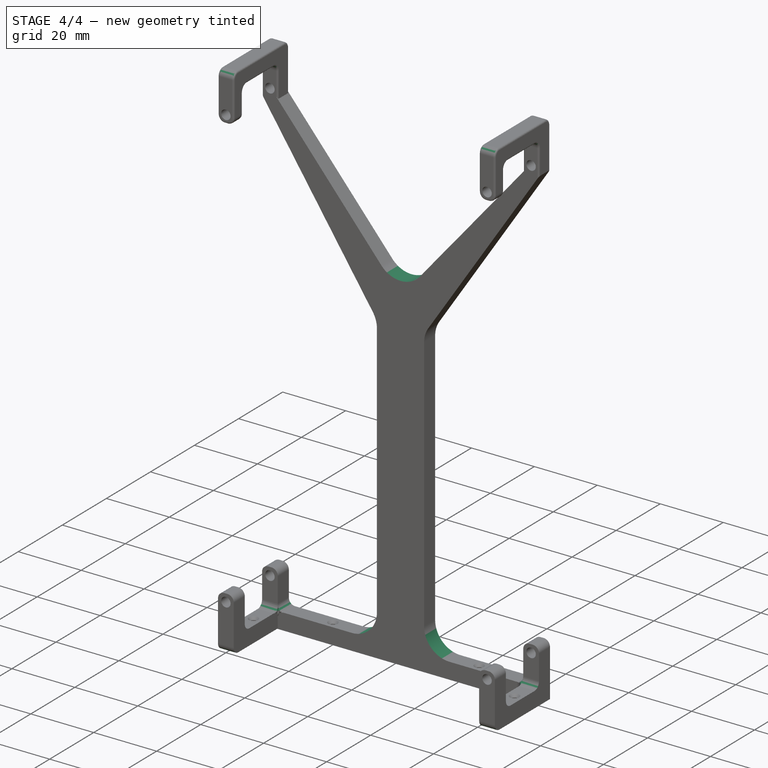
[diagram: stage 4 of 4 — iso view after this stage's code; geometry added in this stage tinted green]
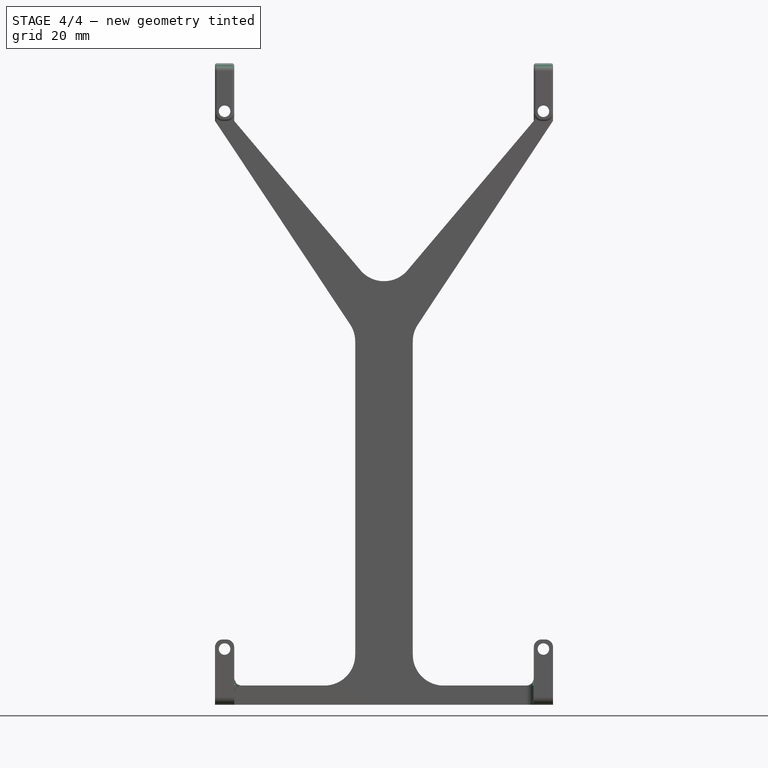
[diagram: stage 4 of 4 — front view after this stage's code; geometry added in this stage tinted green]
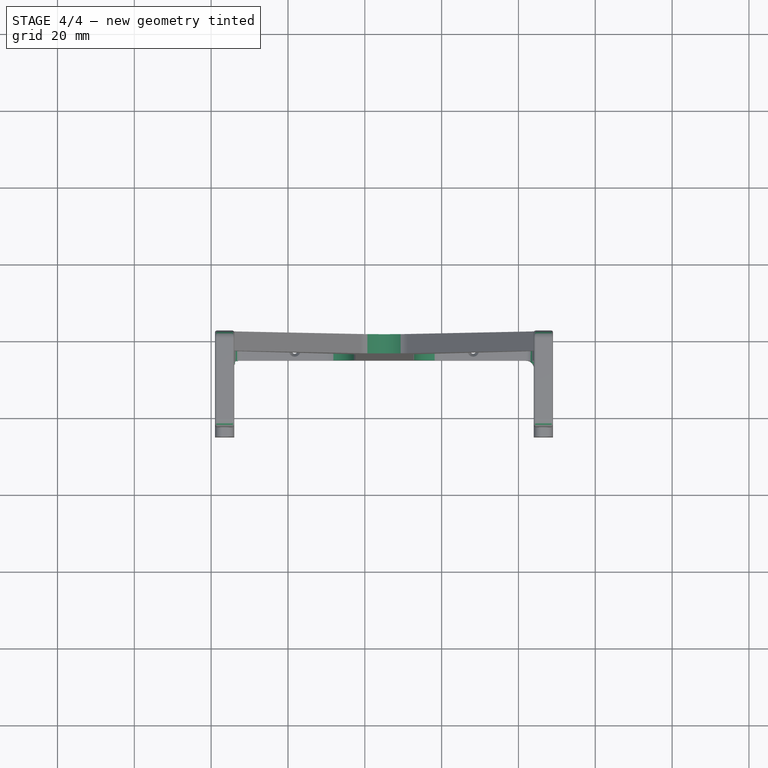
[diagram: stage 4 of 4 — top view after this stage's code; geometry added in this stage tinted green]
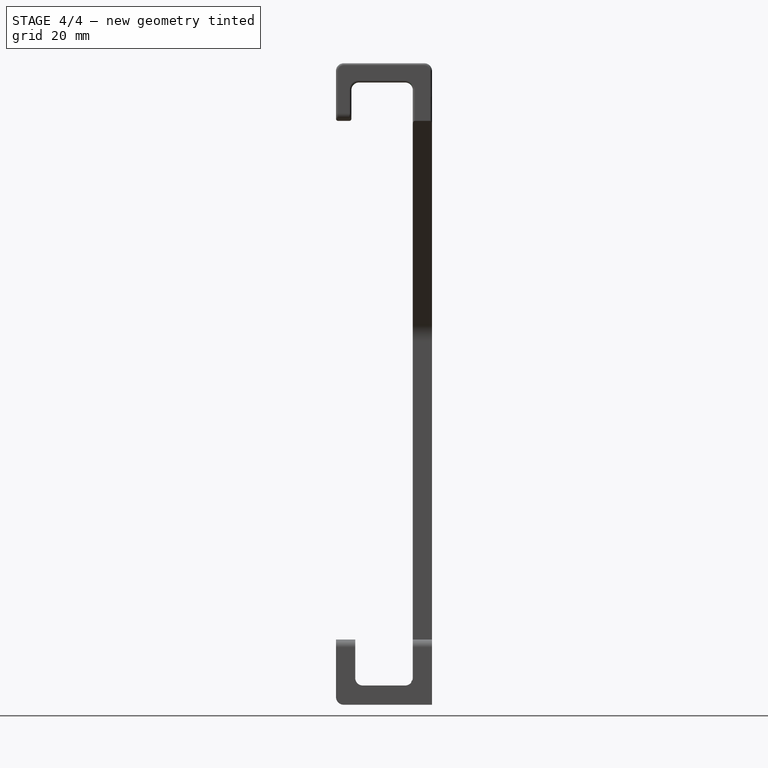
[diagram: stage 4 of 4 — right view after this stage's code; geometry added in this stage tinted green]
FEATURE [PartDesign::Fillet] Fillet001  label="Fuß 1"
  Base = -> Fillet [Edge122,Edge124,Edge31,Edge130,Edge61,Edge98,Edge175,Edge172,Edge59,Edge69,Edge101,Edge21,Edge11,Edge125,Edge126,Edge150,Edge185]
  BaseFeature = -> Fillet
  Placement = pos=(0,0,0) rot=(1,0,0;1.5708rad)
  Radius = 2
  Refine = true
  SupportTransform = false
  Suppressed = false
  UseAllEdges = false
FEATURE [PartDesign::Fillet] Fillet002  label="Ständer001"
  Base = -> Fillet001 [Edge137,Edge39,Edge44,Edge140,Edge103]
  BaseFeature = -> Fillet001
  Placement = pos=(0,0,0) rot=(1,0,0;1.5708rad)
  Radius = 8
  Refine = true
  SupportTransform = false
  Suppressed = false
  UseAllEdges = false
FEATURE [PartDesign::Fillet] Fillet003
  Base = -> Fillet002 [Edge60,Edge123,Edge144,Edge88,Edge64,Edge127]
  BaseFeature = -> Fillet002
  Placement = pos=(0,0,0) rot=(1,0,0;1.5708rad)
  Radius = 0.5
  Refine = true
  SupportTransform = false
  Suppressed = false
  UseAllEdges = false
FEATURE [PartDesign::Body] Body001  label="Ständer"
  AllowCompound = false
  Group = -> [ShapeBinder,Sketch001,Pad001,Sketch002,Pad002,Sketch003,Pad003,Sketch004,Pad004,Sketch005,Pocket,Sketch006,Hole,Fillet,Fillet001,Fillet002,Fillet003]
  Origin = -> Origin001
  Tip = -> Fillet003
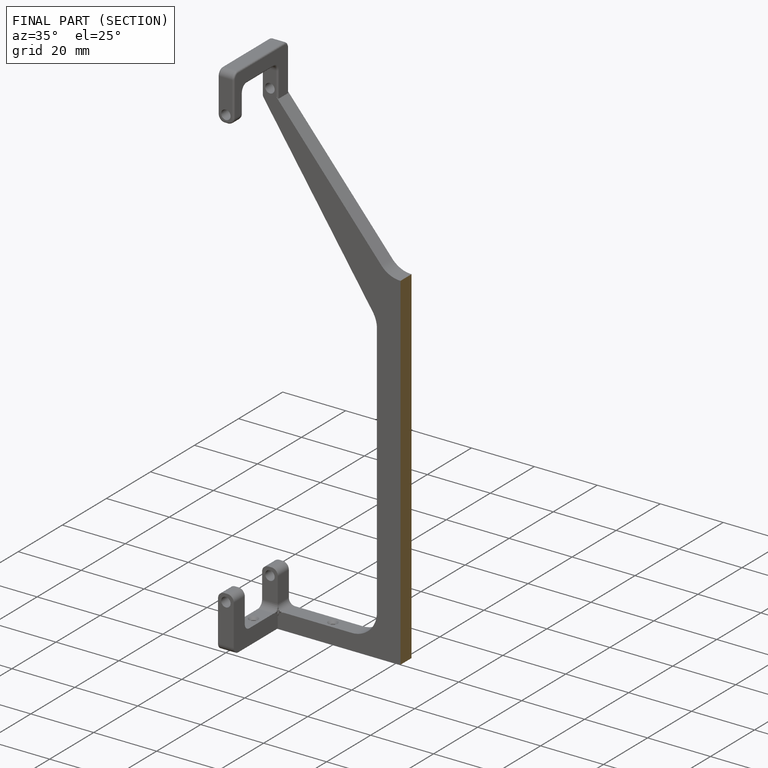
[diagram: finished part — half-section view (interior)]
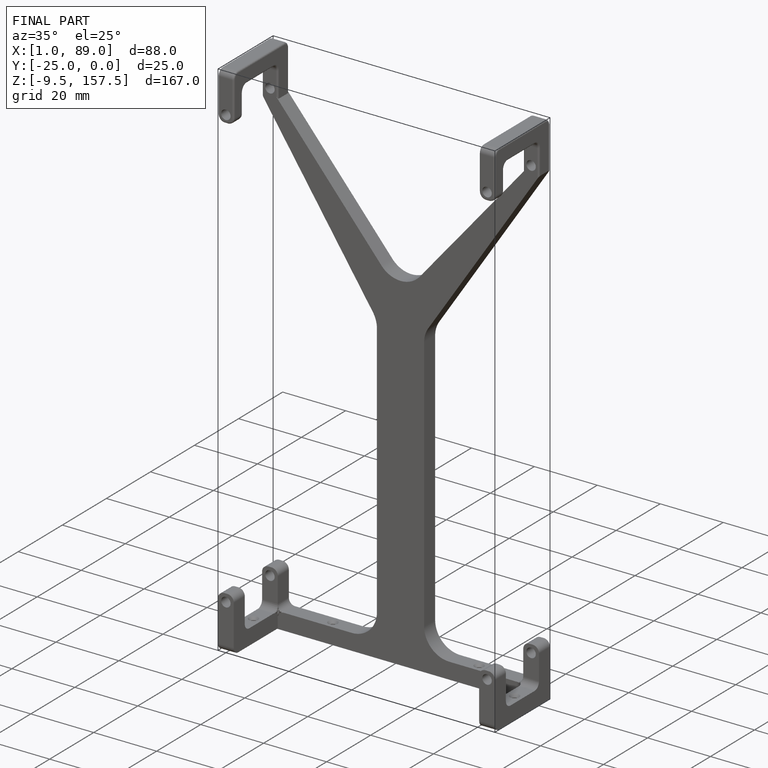
[diagram: finished part — iso view with bounding-box wireframe]
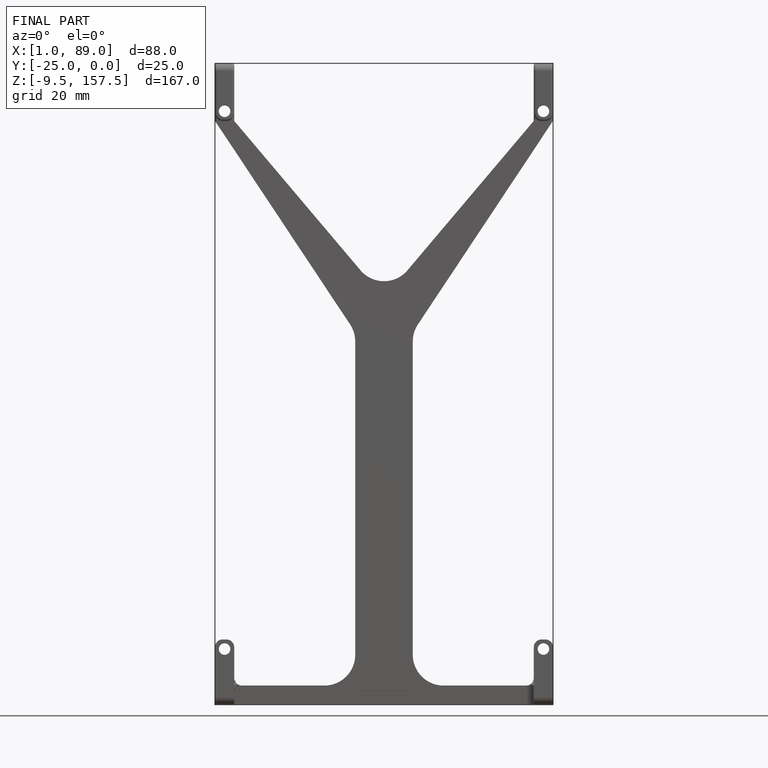
[diagram: finished part — front view with bounding-box wireframe]
